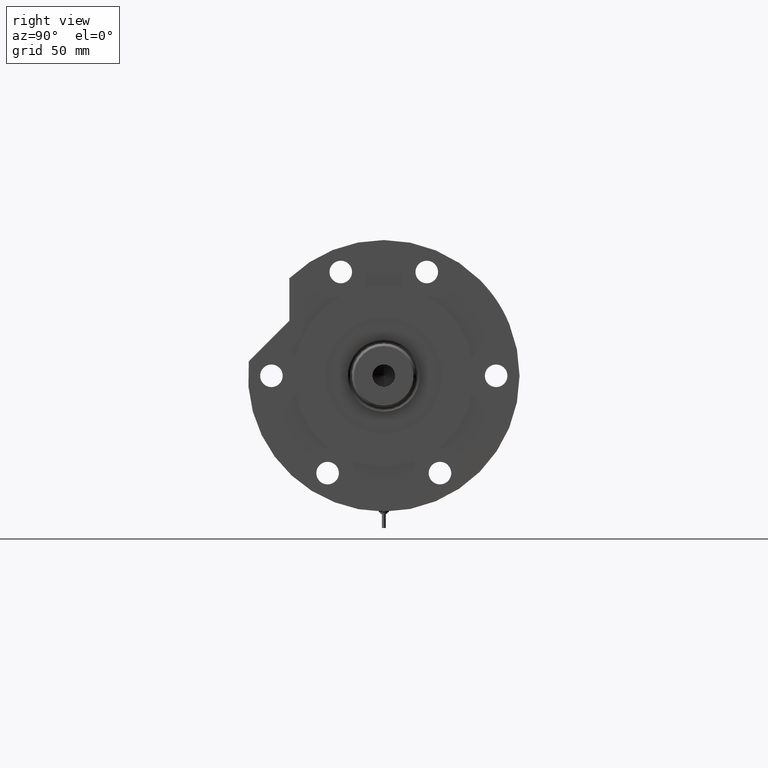
[diagram: clean part render]
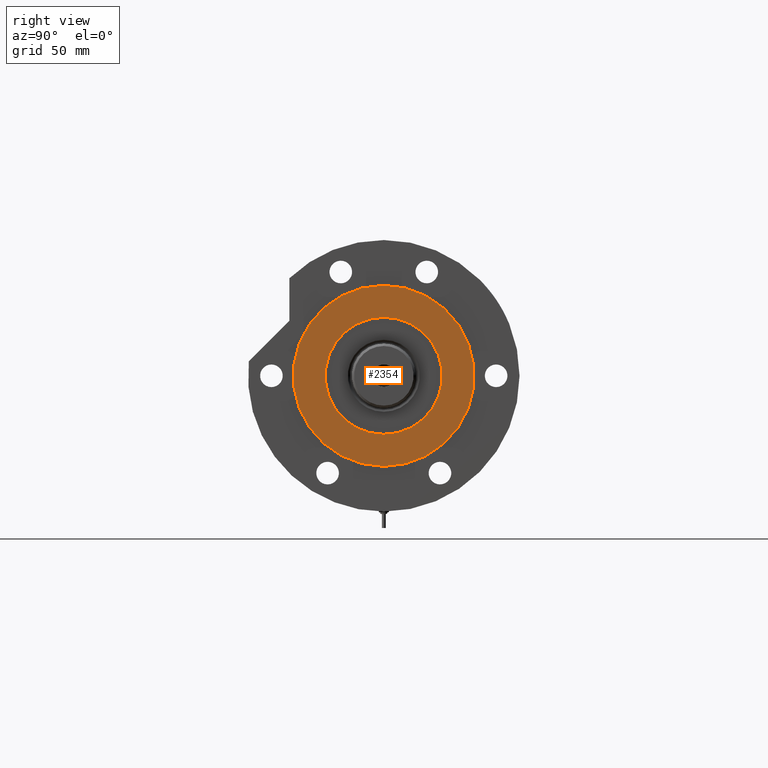
[diagram: same view with one face highlighted and labeled with its STEP entity id]
A machine part, right view. The second image highlights one B-rep face of the part: STEP entity #2354.
In plain terms, the highlighted planar face has unit normal (1, 0, -0).
Its self-contained STEP definition (entity closure, byte-faithful):
#530 = ORIENTED_EDGE ( 'NONE', *, *, #621, .F. ) ;
#621 = EDGE_CURVE ( 'NONE', #5534, #2373, #1312, .T. ) ;
#690 = AXIS2_PLACEMENT_3D ( 'NONE', #3998, #3573, #1153 ) ;
#1090 = CARTESIAN_POINT ( 'NONE',  ( 0.000000000000000000, 0.000000000000000000, 33.00000000000000000 ) ) ;
#1153 = DIRECTION ( 'NONE',  ( 1.000000000000000000, 0.000000000000000000, -0.000000000000000000 ) ) ;
#1225 = CARTESIAN_POINT ( 'NONE',  ( 37.50000000000000711, 0.000000000000000000, 33.00000000000000000 ) ) ;
#1312 = CIRCLE ( 'NONE', #1800, 37.50000000000000711 ) ;
#1479 = CIRCLE ( 'NONE', #3771, 37.50000000000000711 ) ;
#1511 = DIRECTION ( 'NONE',  ( 0.000000000000000000, 0.000000000000000000, 1.000000000000000000 ) ) ;
#1750 = ORIENTED_EDGE ( 'NONE', *, *, #2285, .T. ) ;
#1800 = AXIS2_PLACEMENT_3D ( 'NONE', #5688, #1511, #2827 ) ;
#2206 = DIRECTION ( 'NONE',  ( 0.000000000000000000, 0.000000000000000000, 1.000000000000000000 ) ) ;
#2285 = EDGE_CURVE ( 'NONE', #2808, #3023, #7154, .T. ) ;
#2354 = ADVANCED_FACE ( 'NONE', ( #3461, #6365 ), #6402, .T. ) ;
#2373 = VERTEX_POINT ( 'NONE', #1225 ) ;
#2562 = AXIS2_PLACEMENT_3D ( 'NONE', #5700, #2206, #2736 ) ;
#2695 = CARTESIAN_POINT ( 'NONE',  ( -58.00000000000000000, 0.000000000000000000, 33.00000000000000000 ) ) ;
#2736 = DIRECTION ( 'NONE',  ( 1.000000000000000000, 0.000000000000000000, 0.000000000000000000 ) ) ;
#2808 = VERTEX_POINT ( 'NONE', #5822 ) ;
#2827 = DIRECTION ( 'NONE',  ( 1.000000000000000000, 0.000000000000000000, 0.000000000000000000 ) ) ;
#2912 = DIRECTION ( 'NONE',  ( 0.000000000000000000, 0.000000000000000000, 1.000000000000000000 ) ) ;
#3023 = VERTEX_POINT ( 'NONE', #2695 ) ;
#3042 = CIRCLE ( 'NONE', #2562, 58.00000000000000000 ) ;
#3461 = FACE_BOUND ( 'NONE', #4747, .T. ) ;
#3573 = DIRECTION ( 'NONE',  ( 0.000000000000000000, 0.000000000000000000, 1.000000000000000000 ) ) ;
#3771 = AXIS2_PLACEMENT_3D ( 'NONE', #1090, #2912, #7489 ) ;
#3880 = CARTESIAN_POINT ( 'NONE',  ( 0.000000000000000000, 0.000000000000000000, 33.00000000000000000 ) ) ;
#3998 = CARTESIAN_POINT ( 'NONE',  ( 0.000000000000000000, 0.000000000000000000, 33.00000000000000000 ) ) ;
#4506 = CARTESIAN_POINT ( 'NONE',  ( -37.50000000000000711, 4.592425496802575156E-15, 33.00000000000000000 ) ) ;
#4747 = EDGE_LOOP ( 'NONE', ( #5406, #530 ) ) ;
#4832 = AXIS2_PLACEMENT_3D ( 'NONE', #3880, #6279, #6211 ) ;
#5044 = EDGE_CURVE ( 'NONE', #3023, #2808, #3042, .T. ) ;
#5176 = EDGE_CURVE ( 'NONE', #2373, #5534, #1479, .T. ) ;
#5406 = ORIENTED_EDGE ( 'NONE', *, *, #5176, .F. ) ;
#5534 = VERTEX_POINT ( 'NONE', #4506 ) ;
#5581 = EDGE_LOOP ( 'NONE', ( #6422, #1750 ) ) ;
#5688 = CARTESIAN_POINT ( 'NONE',  ( 0.000000000000000000, 0.000000000000000000, 33.00000000000000000 ) ) ;
#5700 = CARTESIAN_POINT ( 'NONE',  ( 0.000000000000000000, 0.000000000000000000, 33.00000000000000000 ) ) ;
#5822 = CARTESIAN_POINT ( 'NONE',  ( 58.00000000000000000, 7.102951435054648059E-15, 33.00000000000000000 ) ) ;
#6211 = DIRECTION ( 'NONE',  ( 1.000000000000000000, 0.000000000000000000, 0.000000000000000000 ) ) ;
#6279 = DIRECTION ( 'NONE',  ( 0.000000000000000000, 0.000000000000000000, 1.000000000000000000 ) ) ;
#6365 = FACE_OUTER_BOUND ( 'NONE', #5581, .T. ) ;
#6402 = PLANE ( 'NONE',  #690 ) ;
#6422 = ORIENTED_EDGE ( 'NONE', *, *, #5044, .T. ) ;
#7154 = CIRCLE ( 'NONE', #4832, 58.00000000000000000 ) ;
#7489 = DIRECTION ( 'NONE',  ( 1.000000000000000000, 0.000000000000000000, 0.000000000000000000 ) ) ;